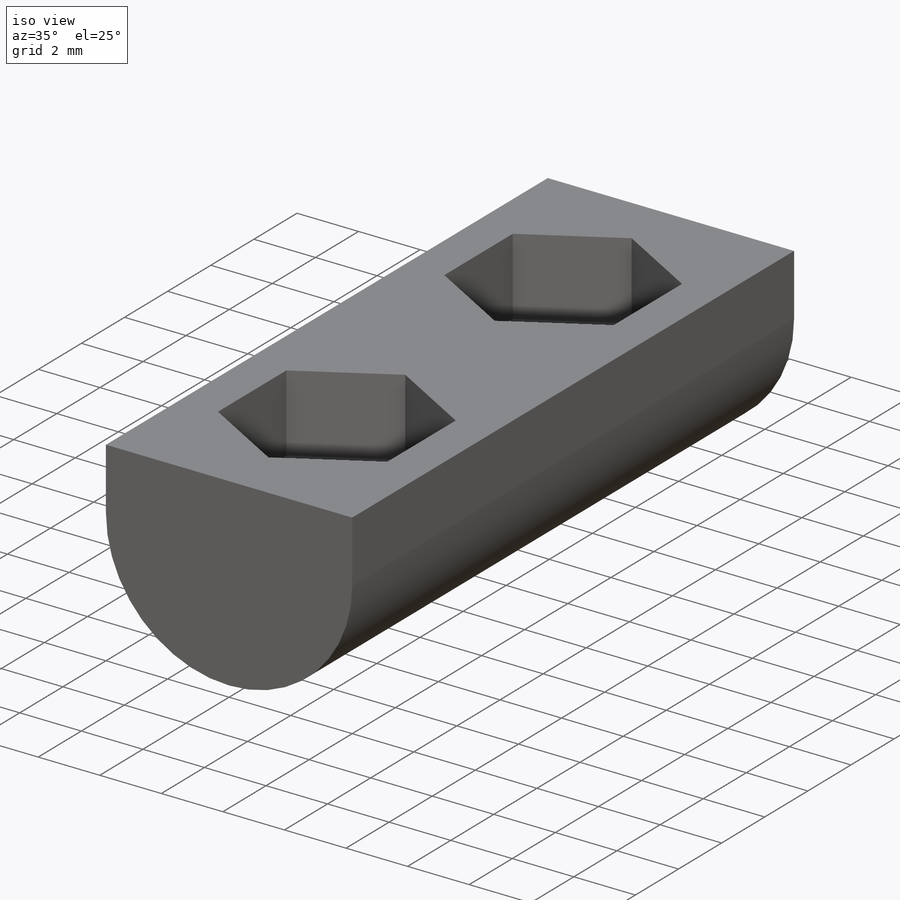
[diagram: iso view]
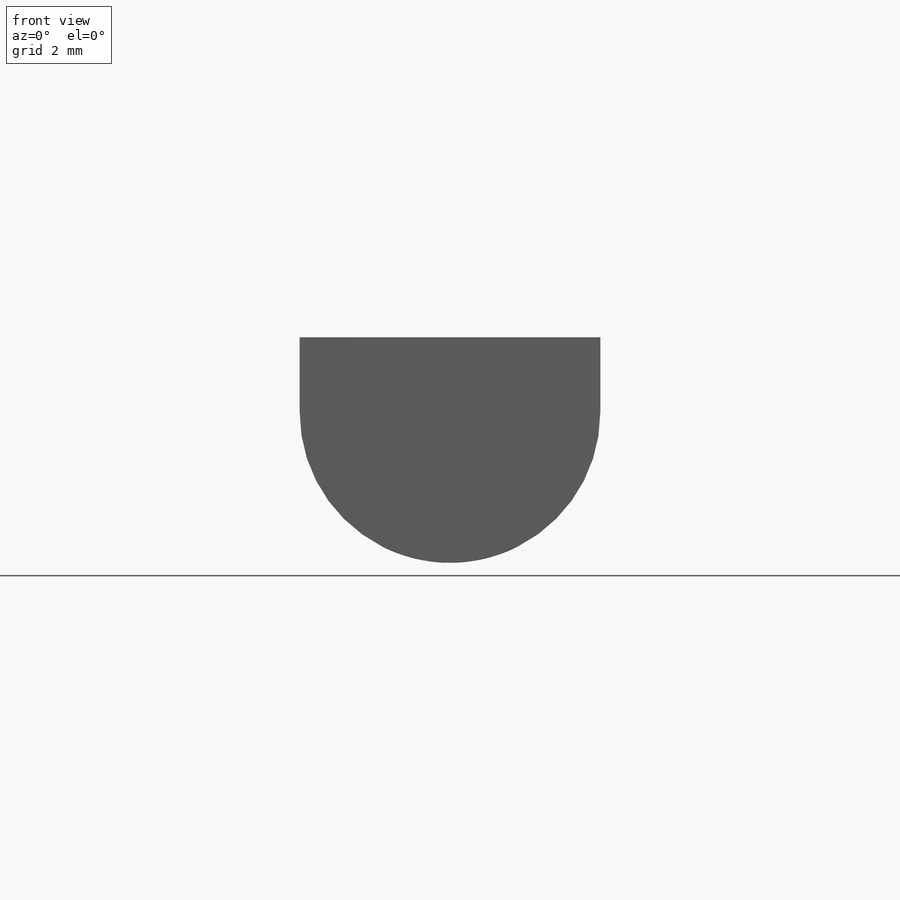
[diagram: front view]
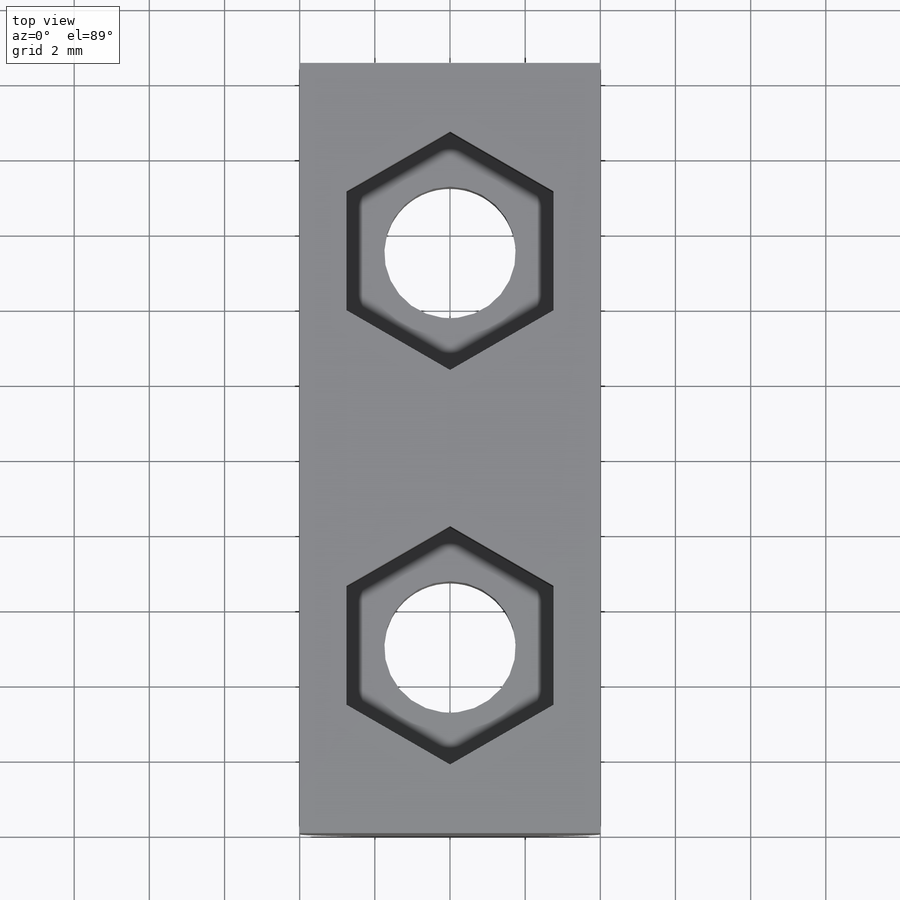
[diagram: top view]
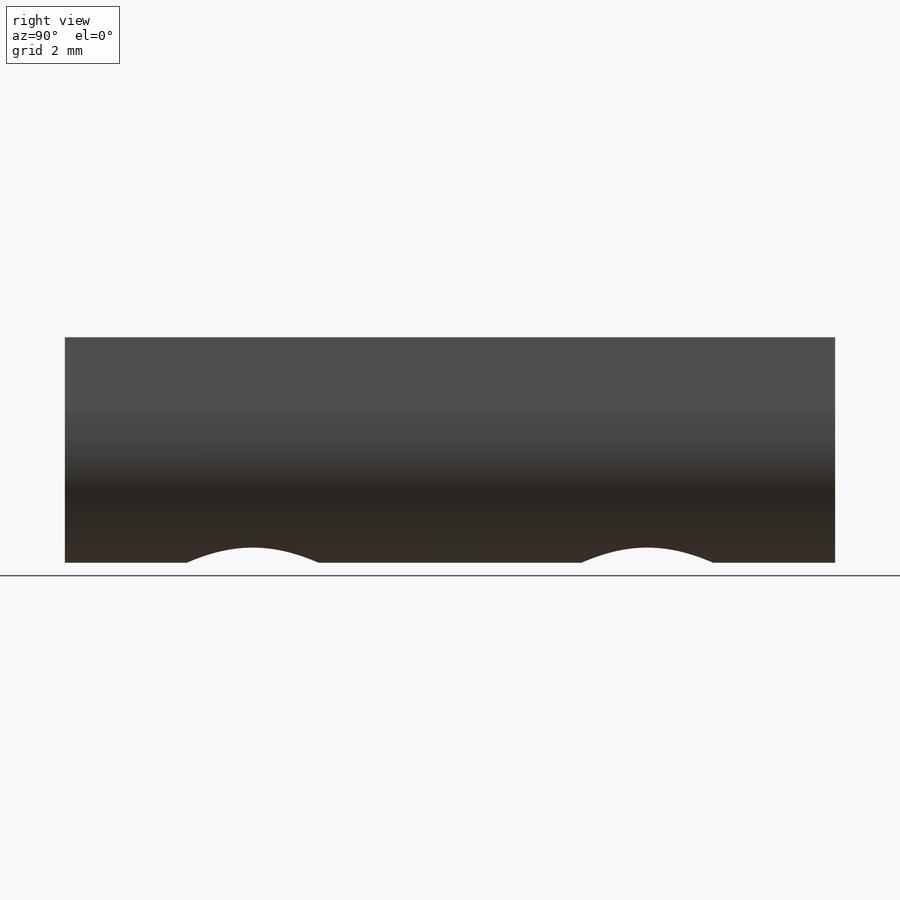
[diagram: right view]
SOLIDWORKS PART (.sldprt)
format: sldprt  version: not decoded by parser v0  size: 220,160 bytes
history: native  units: mm
features: sketch x2, material x1, extrude x1, cut_extrude x1, fillet x1 (+12 scaffold rows collapsed)
feature tree (18):
  scaffold x12  (default folders/planes/origin — collapsed)
  material  "ABS PC"
  sketch  "Sketch1"  dims[c1.D3=~2.739208mm c1.D4=~2.739208mm c1.D5=~2.493683mm c1.D6=3.5mm c1.D7=3.5mm c2.D5=3.5mm c2.D1=~33.212118mm c2.D2=18.2247mm c3.D1=8.0mm c3.D2=20.5mm c3.D3=4.0mm c3.D4=5.0mm c3.D5=5.0mm c3.D6=10.5mm c3.D7=10.5mm c4.D5=10.5mm]
  extrude  "Boss-Extrude1"  Depth=6mm
  sketch  "Sketch2"  dims[D1=5.5mm]
  cut_extrude  "Cut-Extrude1"  Depth=2.5mm
  fillet  "Fillet1"  Radius=4mm
decode coverage: 5 of 5 modeling features carry decoded parameters
note: ~ marks probable driven/reference dimensions
note: suppression state not decoded; provenance and decode notes live in map.json
